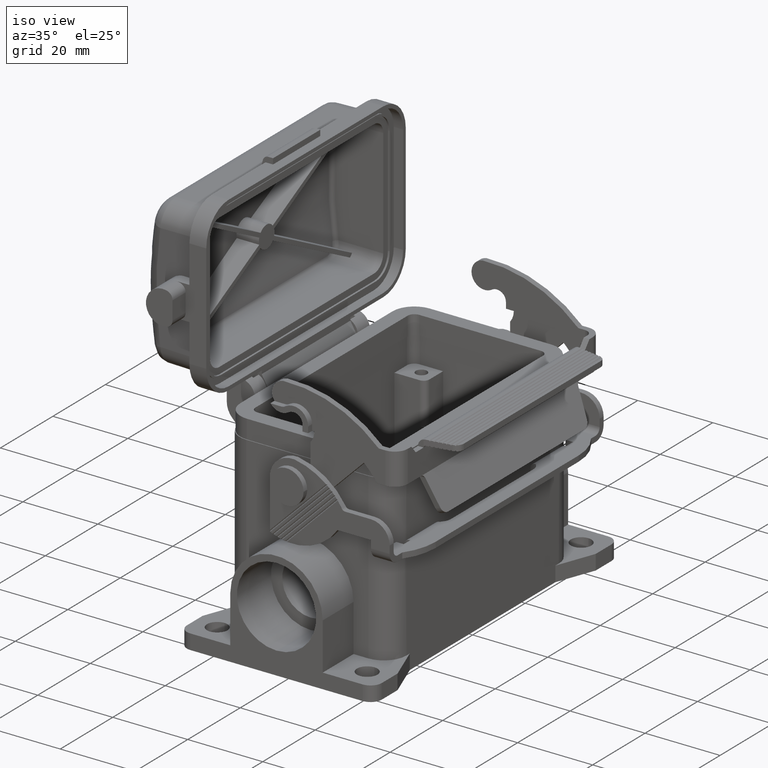
[diagram: clean part render]
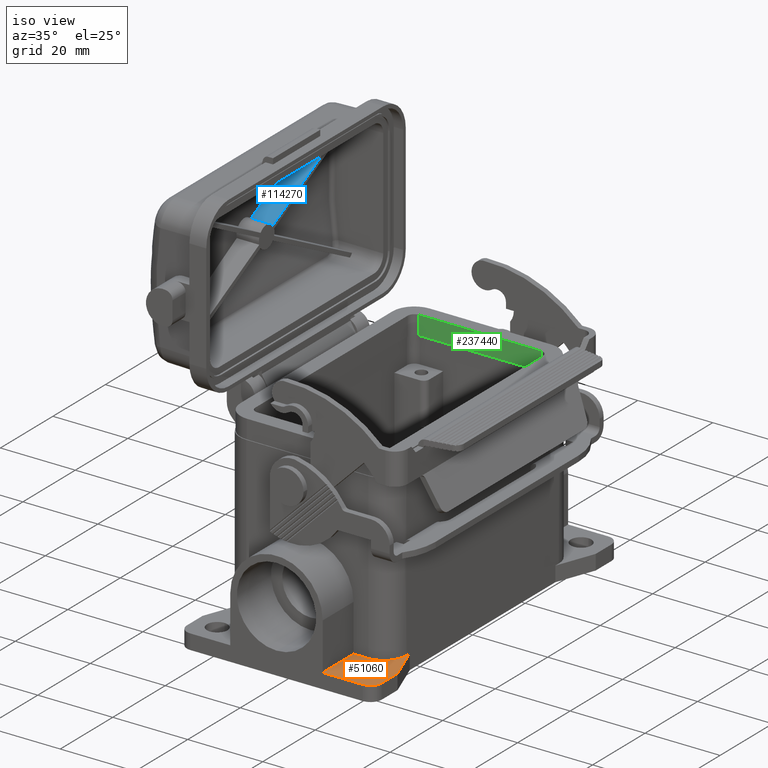
[diagram: same view with three faces highlighted in distinct colors, each labeled with its STEP entity id]
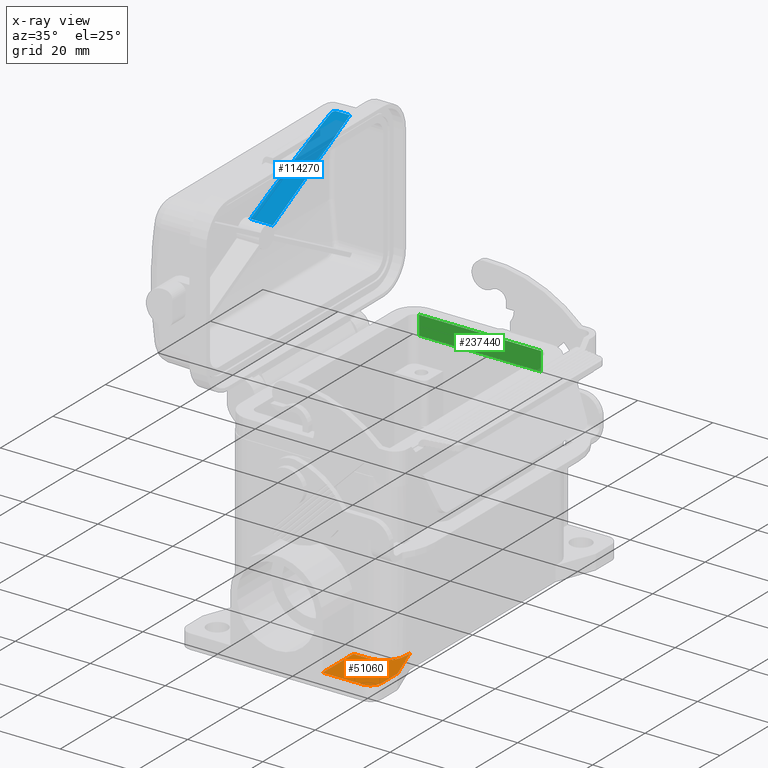
[diagram: x-ray of the same camera — body ghosted, the three highlighted faces saturated]
A machine part, iso view with three faces highlighted in distinct colors.
The next image is the same camera in x-ray (body ghosted, the three faces saturated) — at least one of them is partly hidden behind the body in this view.
Their STEP definitions:

[orange] entity #51060 — the highlighted planar face has unit normal (0, 0, 1).
#530=CARTESIAN_POINT('',(-29.25,-16.25,-40.));
#540=VERTEX_POINT('',#530);
#570=CARTESIAN_POINT('',(-29.25,0.,-40.));
#580=DIRECTION('',(0.,-1.,0.));
#590=VECTOR('',#580,1.);
#600=LINE('',#570,#590);
#610=CARTESIAN_POINT('',(-29.25,-12.33,-40.));
#620=VERTEX_POINT('',#610);
#630=EDGE_CURVE('',#620,#540,#600,.T.);
#1000=CARTESIAN_POINT('',(-41.,-12.33,-40.));
#1010=VERTEX_POINT('',#1000);
#1110=CARTESIAN_POINT('',(-29.25,-12.33,-40.));
#1120=DIRECTION('',(-1.,0.,0.));
#1130=VECTOR('',#1120,11.75);
#1140=LINE('',#1110,#1130);
#1150=EDGE_CURVE('',#620,#1010,#1140,.T.);
#1830=CARTESIAN_POINT('',(-41.,-26.,-40.));
#1840=DIRECTION('',(0.,1.,0.));
#1850=VECTOR('',#1840,13.67);
#1860=LINE('',#1830,#1850);
#1870=CARTESIAN_POINT('',(-41.,-23.,-40.));
#1880=VERTEX_POINT('',#1870);
#1890=EDGE_CURVE('',#1880,#1010,#1860,.T.);
#2740=CARTESIAN_POINT('',(-23.25,-22.25,-40.));
#2750=VERTEX_POINT('',#2740);
#2780=CARTESIAN_POINT('',(-23.25,-16.25,-40.));
#2790=DIRECTION('',(0.,0.,1.));
#2800=DIRECTION('',(-1.,0.,0.));
#2810=AXIS2_PLACEMENT_3D('',#2780,#2790,#2800);
#2820=CIRCLE('',#2810,6.);
#2830=EDGE_CURVE('',#540,#2750,#2820,.T.);
#27310=CARTESIAN_POINT('',(-38.,-23.,-40.));
#27320=DIRECTION('',(0.,0.,1.));
#27330=DIRECTION('',(1.,0.,-0.));
#27340=AXIS2_PLACEMENT_3D('',#27310,#27320,#27330);
#27350=CIRCLE('',#27340,3.);
#27360=CARTESIAN_POINT('',(-38.,-26.,-40.));
#27370=VERTEX_POINT('',#27360);
#27380=EDGE_CURVE('',#1880,#27370,#27350,.T.);
#43510=CARTESIAN_POINT('',(0.,-22.25,-40.));
#43520=DIRECTION('',(1.,0.,0.));
#43530=VECTOR('',#43520,1.);
#43540=LINE('',#43510,#43530);
#43550=CARTESIAN_POINT('',(-22.,-22.25,-40.));
#43560=VERTEX_POINT('',#43550);
#43570=EDGE_CURVE('',#2750,#43560,#43540,.T.);
#50510=CARTESIAN_POINT('',(-37.75,-20.,-40.));
#50520=VERTEX_POINT('',#50510);
#50550=CARTESIAN_POINT('',(-35.,-20.,-40.));
#50560=DIRECTION('',(0.,0.,-1.));
#50570=DIRECTION('',(-1.,0.,0.));
#50580=AXIS2_PLACEMENT_3D('',#50550,#50560,#50570);
#50590=CIRCLE('',#50580,2.75);
#50600=CARTESIAN_POINT('',(-32.25,-20.,-40.));
#50610=VERTEX_POINT('',#50600);
#50620=EDGE_CURVE('',#50520,#50610,#50590,.T.);
#50740=CARTESIAN_POINT('',(1.249001E-15,-2.498002E-15,-40.));
#50750=DIRECTION('',(0.,0.,1.));
#50760=DIRECTION('',(1.,0.,0.));
#50770=AXIS2_PLACEMENT_3D('',#50740,#50750,#50760);
#50780=PLANE('',#50770);
#50790=ORIENTED_EDGE('',*,*,#50620,.T.);
#50800=EDGE_CURVE('',#50610,#50520,#50590,.T.);
#50810=ORIENTED_EDGE('',*,*,#50800,.T.);
#50820=EDGE_LOOP('',(#50810,#50790));
#50830=FACE_BOUND('',#50820,.T.);
#50840=ORIENTED_EDGE('',*,*,#630,.F.);
#50850=ORIENTED_EDGE('',*,*,#2830,.F.);
#50860=ORIENTED_EDGE('',*,*,#43570,.F.);
#50870=CARTESIAN_POINT('',(-22.,-22.25,-40.));
#50880=DIRECTION('',(-0.936329177569044,-0.351123441588392,0.));
#50890=VECTOR('',#50880,10.6800046816469);
#50900=LINE('',#50870,#50890);
#50910=CARTESIAN_POINT('',(-32.,-26.,-40.));
#50920=VERTEX_POINT('',#50910);
#50930=EDGE_CURVE('',#43560,#50920,#50900,.T.);
#50940=ORIENTED_EDGE('',*,*,#50930,.F.);
#50950=CARTESIAN_POINT('',(-32.,-26.,-40.));
#50960=DIRECTION('',(-1.,0.,0.));
#50970=VECTOR('',#50960,9.00000000000001);
#50980=LINE('',#50950,#50970);
#50990=EDGE_CURVE('',#50920,#27370,#50980,.T.);
#51000=ORIENTED_EDGE('',*,*,#50990,.F.);
#51010=ORIENTED_EDGE('',*,*,#27380,.T.);
#51020=ORIENTED_EDGE('',*,*,#1890,.F.);
#51030=ORIENTED_EDGE('',*,*,#1150,.T.);
#51040=EDGE_LOOP('',(#51030,#51020,#51010,#51000,#50940,#50860,#50850,
#50840));
#51050=FACE_OUTER_BOUND('',#51040,.T.);
#51060=ADVANCED_FACE('',(#50830,#51050),#50780,.T.);

[blue] entity #114270 — the highlighted planar face has unit normal (0, 0.4617, -0.887).
#112050=CARTESIAN_POINT('',(37.1800472503134,40.2831595668317,
50.9186994887154));
#112060=CARTESIAN_POINT('',(37.2073560190301,40.280732625913,
50.9329155339005));
#112070=CARTESIAN_POINT('',(37.234707974388,40.277144035295,
50.9471540606015));
#112080=CARTESIAN_POINT('',(37.2619596684434,40.2723389195576,
50.9613403945984));
#112090=CARTESIAN_POINT('',(37.289211044366,40.2675338599146,
50.9755265629859));
#112100=CARTESIAN_POINT('',(37.3163594089255,40.2615125149405,
50.9896591070626));
#112110=CARTESIAN_POINT('',(37.3432550610479,40.2542484569849,
51.0036600973606));
#112120=CARTESIAN_POINT('',(37.3701506282552,40.2469844219634,
51.0176610434546));
#112130=CARTESIAN_POINT('',(37.3967905258873,40.2384784215421,
51.0315288963571));
#112140=CARTESIAN_POINT('',(37.4230282181747,40.228732990849,
51.0451873744444));
#112150=CARTESIAN_POINT('',(37.4492660632286,40.218987503414,
51.058845932057));
#112160=CARTESIAN_POINT('',(37.4750987994738,40.208003852682,
51.0722936034039));
#112170=CARTESIAN_POINT('',(37.5003923307203,40.1958095583698,
51.0854605823629));
#112180=CARTESIAN_POINT('',(37.5130390351123,40.189712440734,
51.0920440399675));
#112190=CARTESIAN_POINT('',(37.5255509372357,40.1833131271249,
51.0985573239554));
#112200=CARTESIAN_POINT('',(37.537912973976,40.1766167854917,
51.1049925929601));
#112210=CARTESIAN_POINT('',(37.5502763701042,40.1699197074972,
51.1114285696174));
#112220=CARTESIAN_POINT('',(37.5624748082915,40.1629355700059,
51.1177786746059));
#112230=CARTESIAN_POINT('',(37.5745817700148,40.1556147960624,
51.1240811599614));
#112240=CARTESIAN_POINT('',(37.5987846600195,40.1409799198189,
51.1366803870259));
#112250=CARTESIAN_POINT('',(37.6225063287592,40.1250586495809,
51.1490291061557));
#112260=CARTESIAN_POINT('',(37.6455652764145,40.1078990737534,
51.1610328345254));
#112270=CARTESIAN_POINT('',(37.6686239443913,40.0907397060517,
51.1730364173038));
#112280=CARTESIAN_POINT('',(37.691015445925,40.07234501196,
51.1846926952146));
#112290=CARTESIAN_POINT('',(37.7125704367357,40.0528058771382,
51.1959135132056));
#112300=CARTESIAN_POINT('',(37.734125491029,40.0332666847708,
51.2071343642435));
#112310=CARTESIAN_POINT('',(37.7548398874774,40.0125869548819,
51.2179175965068));
#112320=CARTESIAN_POINT('',(37.7745708378273,39.9908904128387,
51.2281888791351));
#112330=CARTESIAN_POINT('',(37.7943044177856,39.9691909792262,
51.2384615306508));
#112340=CARTESIAN_POINT('',(37.8130419726596,39.9464909026851,
51.2482156843261));
#112350=CARTESIAN_POINT('',(37.8307033928893,39.9228947690678,
51.2574096377637));
#112360=CARTESIAN_POINT('',(37.8395452654841,39.9110817888849,
51.2620124253017));
#112370=CARTESIAN_POINT('',(37.8481521617063,39.8989979983429,
51.2664928918825));
#112380=CARTESIAN_POINT('',(37.8565039569992,39.8866600948596,
51.2708405613249));
#112390=CARTESIAN_POINT('',(37.8648557194508,39.874322239892,
51.2751882136713));
#112400=CARTESIAN_POINT('',(37.8729522427808,39.8617304399361,
51.2794029969409));
#112410=CARTESIAN_POINT('',(37.8807745915521,39.8489046136472,
51.2834750539691));
#112420=CARTESIAN_POINT('',(37.8885969211996,39.8360788187145,
51.2875471010422));
#112430=CARTESIAN_POINT('',(37.8961449456611,39.8230191878022,
51.2914763538736));
#112440=CARTESIAN_POINT('',(37.9034015601583,39.8097483819885,
51.2952539082794));
#112450=CARTESIAN_POINT('',(37.9106581671167,39.7964775899618,
51.2990314587607));
#112460=CARTESIAN_POINT('',(37.9176232450004,39.7829958308094,
51.3026572488115));
#112470=CARTESIAN_POINT('',(37.9242820234418,39.7693279335413,
51.306123589465));
#112480=CARTESIAN_POINT('',(37.930940804145,39.7556600316303,
51.309589931296));
#112490=CARTESIAN_POINT('',(37.9372931813021,39.7418062113739,
51.3128967695367));
#112500=CARTESIAN_POINT('',(37.9433270867437,39.7277928015644,
51.3160378218957));
#112510=CARTESIAN_POINT('',(37.949361002714,39.7137793673023,
51.3191788797357));
#112520=CARTESIAN_POINT('',(37.9550763609424,39.6996065692526,
51.3221541069114));
#112530=CARTESIAN_POINT('',(37.9604640253661,39.6853014738049,
51.3249587474899));
#112540=CARTESIAN_POINT('',(37.9712422555903,39.6566835792988,
51.3305695390078));
#112550=CARTESIAN_POINT('',(37.9806968124331,39.6275699838142,
51.3354912697777));
#112560=CARTESIAN_POINT('',(37.9888155600682,39.5980839492599,
51.3397176222883));
#112570=CARTESIAN_POINT('',(37.9928805714457,39.5833204572381,
51.3418337332716));
#112580=CARTESIAN_POINT('',(37.996623719515,39.5684159326588,
51.3437822928217));
#112590=CARTESIAN_POINT('',(38.0000353601241,39.5533964781324,
51.3455582805112));
#112600=CARTESIAN_POINT('',(38.0034469916264,39.5383770636979,
51.3473342634599));
#112610=CARTESIAN_POINT('',(38.0065270499799,39.5232429461157,
51.3489376403524));
#112620=CARTESIAN_POINT('',(38.0092683254575,39.5080221534803,
51.3503646580425));
#112630=CARTESIAN_POINT('',(38.0120095976456,39.4928013791098,
51.3517916740202));
#112640=CARTESIAN_POINT('',(38.0144120379062,39.4774941679422,
51.3530423052607));
#112650=CARTESIAN_POINT('',(38.0164711970728,39.462129722887,
51.3541142356746));
#112660=CARTESIAN_POINT('',(38.0185303566771,39.4467652745659,
51.3551861663165));
#112670=CARTESIAN_POINT('',(38.0202462040442,39.4313438351338,
51.3560793799197));
#112680=CARTESIAN_POINT('',(38.0216172128306,39.415895007177,
51.3567930819199));
#112690=CARTESIAN_POINT('',(38.022988223841,39.4004461541596,
51.3575067850778));
#112700=CARTESIAN_POINT('',(38.0240143836447,39.3849701531629,
51.3580409700604));
#112710=CARTESIAN_POINT('',(38.0246970911947,39.3694962090148,
51.3583963651161));
#112720=CARTESIAN_POINT('',(38.0253798008495,39.3540222171574,
51.3587517612675));
#112730=CARTESIAN_POINT('',(38.0257190641513,39.3385505137361,
51.3589283705639));
#112740=CARTESIAN_POINT('',(38.0257190476831,39.3231090867172,
51.3589283619911));
#112750=B_SPLINE_CURVE_WITH_KNOTS('',3,(#112050,#112060,#112070,#112080,
#112090,#112100,#112110,#112120,#112130,#112140,#112150,#112160,#112170,
#112180,#112190,#112200,#112210,#112220,#112230,#112240,#112250,#112260,
#112270,#112280,#112290,#112300,#112310,#112320,#112330,#112340,#112350,
#112360,#112370,#112380,#112390,#112400,#112410,#112420,#112430,#112440,
#112450,#112460,#112470,#112480,#112490,#112500,#112510,#112520,#112530,
#112540,#112550,#112560,#112570,#112580,#112590,#112600,#112610,#112620,
#112630,#112640,#112650,#112660,#112670,#112680,#112690,#112700,#112710,
#112720,#112730,#112740),.UNSPECIFIED.,.F.,.F.,(4,3,3,3,3,3,3,3,3,3,3,3,
3,3,3,3,3,3,3,3,3,3,3,4),(0.,0.0930010340333185,0.186445230583812,
0.279956430418363,0.373211073197606,0.419665413659919,0.466037934708502,
0.559241388413064,0.652772256063733,0.746184967206894,0.839109060049547,
0.885578868988937,0.93221163496655,0.978949038465362,1.0257295415846,
1.07249101422013,1.1191732549647,1.21210227935734,1.25855033555412,
1.30510822021667,1.35171846582515,1.39832064831433,1.4448540348078,
1.49126023894194),.UNSPECIFIED.);
#112760=CARTESIAN_POINT('',(37.1800472502268,40.283159565858,
50.9186994886544));
#112770=VERTEX_POINT('',#112760);
#112780=CARTESIAN_POINT('',(38.0257190476831,39.3231090867172,
51.3589283619911));
#112790=VERTEX_POINT('',#112780);
#112800=EDGE_CURVE('',#112770,#112790,#112750,.T.);
#113880=CARTESIAN_POINT('',(-34.5437429596392,35.7,13.5816575647123));
#113890=DIRECTION('',(0.461748613235034,-9.84779850086405E-17,
-0.887010833178222));
#113900=DIRECTION('',(-0.887010833178222,-5.12643942002271E-17,
-0.461748613235034));
#113910=AXIS2_PLACEMENT_3D('',#113880,#113890,#113900);
#113920=PLANE('',#113910);
#113930=CARTESIAN_POINT('',(8.56593029272744,35.7,36.0231330199463));
#113940=DIRECTION('',(0.,-1.,1.11022302462516E-16));
#113950=VECTOR('',#113940,1.);
#113960=LINE('',#113930,#113950);
#113970=CARTESIAN_POINT('',(8.56593029272744,41.6832705622501,
36.0231330199463));
#113980=VERTEX_POINT('',#113970);
#113990=CARTESIAN_POINT('',(8.56593029272744,35.7,36.0231330199463));
#114000=VERTEX_POINT('',#113990);
#114010=EDGE_CURVE('',#113980,#114000,#113960,.T.);
#114020=ORIENTED_EDGE('',*,*,#114010,.T.);
#114030=CARTESIAN_POINT('',(5.06372434631961,-57.6486431583371,34.2));
#114040=DIRECTION('',(0.461748613235034,-9.84779850086405E-17,
-0.887010833178222));
#114050=DIRECTION('',(-0.887010833178222,-5.12643942002271E-17,
-0.461748613235034));
#114060=AXIS2_PLACEMENT_3D('',#114030,#114040,#114050);
#114070=ELLIPSE('',#114060,215.157426163764,99.3486431583371);
#114080=EDGE_CURVE('',#113980,#112770,#114070,.T.);
#114090=ORIENTED_EDGE('',*,*,#114080,.F.);
#114100=ORIENTED_EDGE('',*,*,#112800,.F.);
#114110=CARTESIAN_POINT('',(38.0257186056518,25.7,51.3589281318842));
#114120=DIRECTION('',(0.,1.,-1.11022302462516E-16));
#114130=VECTOR('',#114120,1.);
#114140=LINE('',#114110,#114130);
#114150=CARTESIAN_POINT('',(38.0257186056518,35.7,51.3589281318842));
#114160=VERTEX_POINT('',#114150);
#114170=EDGE_CURVE('',#114160,#112790,#114140,.T.);
#114180=ORIENTED_EDGE('',*,*,#114170,.T.);
#114190=CARTESIAN_POINT('',(-34.5437429596392,35.7,13.5816575647123));
#114200=DIRECTION('',(-0.887010833178222,-5.12643942002271E-17,
-0.461748613235034));
#114210=VECTOR('',#114200,1.);
#114220=LINE('',#114190,#114210);
#114230=EDGE_CURVE('',#114160,#114000,#114220,.T.);
#114240=ORIENTED_EDGE('',*,*,#114230,.F.);
#114250=EDGE_LOOP('',(#114240,#114180,#114100,#114090,#114020));
#114260=FACE_OUTER_BOUND('',#114250,.T.);
#114270=ADVANCED_FACE('',(#114260),#113920,.F.);

[green] entity #237440 — the highlighted planar face has unit normal (0, 1, 0).
#4840=CARTESIAN_POINT('',(36.55,-16.25,9.));
#4850=VERTEX_POINT('',#4840);
#4880=CARTESIAN_POINT('',(36.55,16.25,9.));
#4890=DIRECTION('',(0.,-1.,0.));
#4900=VECTOR('',#4890,32.5);
#4910=LINE('',#4880,#4900);
#4920=CARTESIAN_POINT('',(36.55,16.25,9.));
#4930=VERTEX_POINT('',#4920);
#4940=EDGE_CURVE('',#4930,#4850,#4910,.T.);
#173320=CARTESIAN_POINT('',(36.55,16.25,9.));
#173330=DIRECTION('',(0.,0.,-1.));
#173340=VECTOR('',#173330,5.);
#173350=LINE('',#173320,#173340);
#173360=CARTESIAN_POINT('',(36.55,16.25,4.));
#173370=VERTEX_POINT('',#173360);
#173380=EDGE_CURVE('',#4930,#173370,#173350,.T.);
#231730=CARTESIAN_POINT('',(36.55,-16.25,4.));
#231740=DIRECTION('',(0.,1.,0.));
#231750=VECTOR('',#231740,32.5);
#231760=LINE('',#231730,#231750);
#231770=CARTESIAN_POINT('',(36.55,-16.25,4.));
#231780=VERTEX_POINT('',#231770);
#231790=EDGE_CURVE('',#231780,#173370,#231760,.T.);
#236970=CARTESIAN_POINT('',(36.55,-16.25,9.));
#236980=DIRECTION('',(0.,0.,-1.));
#236990=VECTOR('',#236980,5.);
#237000=LINE('',#236970,#236990);
#237010=EDGE_CURVE('',#4850,#231780,#237000,.T.);
#237330=CARTESIAN_POINT('',(36.55,-16.25,9.));
#237340=DIRECTION('',(1.,-0.,0.));
#237350=DIRECTION('',(0.,0.,-1.));
#237360=AXIS2_PLACEMENT_3D('',#237330,#237340,#237350);
#237370=PLANE('',#237360);
#237380=ORIENTED_EDGE('',*,*,#173380,.T.);
#237390=ORIENTED_EDGE('',*,*,#4940,.F.);
#237400=ORIENTED_EDGE('',*,*,#237010,.F.);
#237410=ORIENTED_EDGE('',*,*,#231790,.F.);
#237420=EDGE_LOOP('',(#237410,#237400,#237390,#237380));
#237430=FACE_OUTER_BOUND('',#237420,.T.);
#237440=ADVANCED_FACE('',(#237430),#237370,.F.);